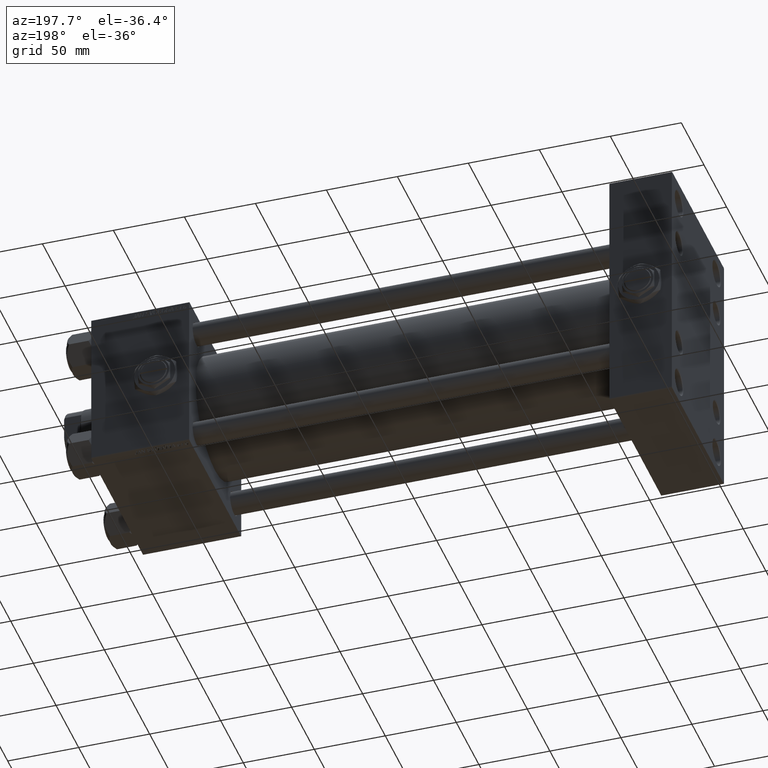
[diagram: clean part render]
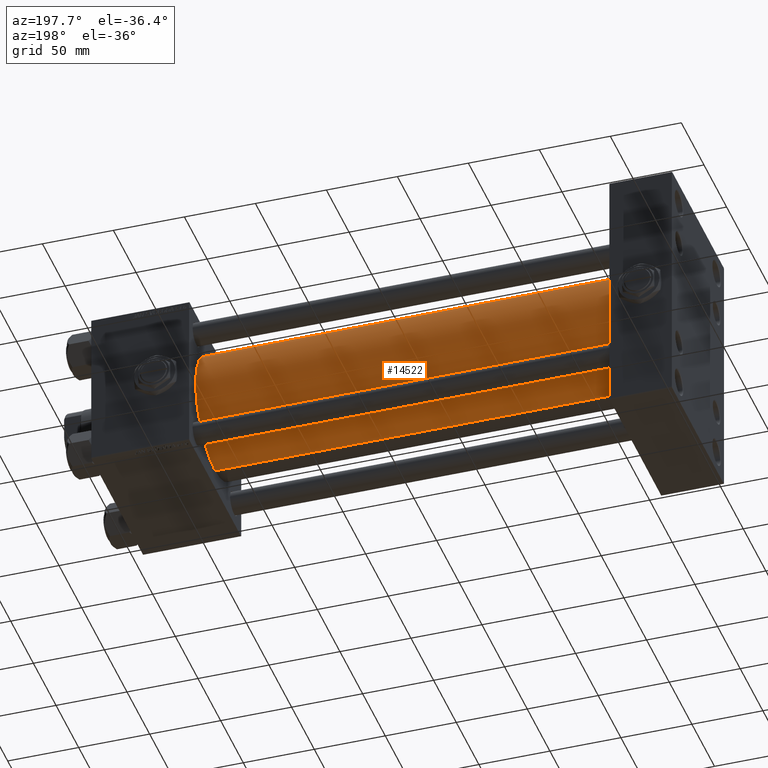
[diagram: same view with one face highlighted and labeled with its STEP entity id]
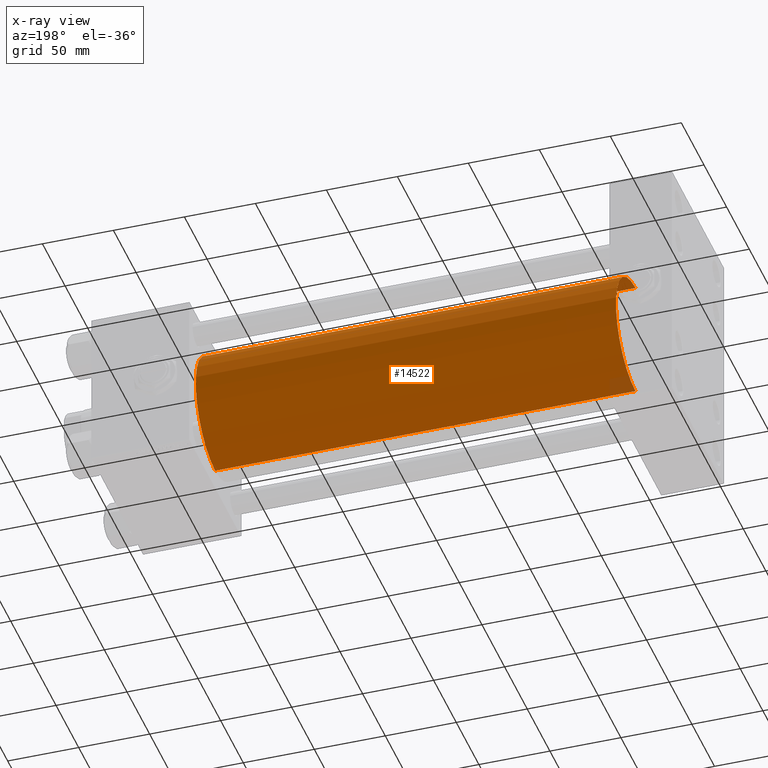
[diagram: x-ray of the same camera — body ghosted, the highlighted face saturated]
A machine part, auxiliary view. The second image highlights one B-rep face of the part: STEP entity #14522.
The next image is the same camera in x-ray: the body ghosted, the highlighted face saturated — about 1% of this face is hidden behind the body in this view.
In plain terms, the highlighted cylindrical surface (partial cylindrical patch) has radius 43 mm, axis along (-1, -0, -0).
Its self-contained STEP definition (entity closure, byte-faithful):
#846 = CARTESIAN_POINT ( 'NONE',  ( 339.9999999999999432, -2.602085213965210642E-15, 43.00000000000000000 ) ) ;
#2229 = CARTESIAN_POINT ( 'NONE',  ( 43.99999999999998579, 2.663896022368408223E-15, -43.00000000000000000 ) ) ;
#2815 = CARTESIAN_POINT ( 'NONE',  ( 339.9999999999999432, 2.663896022368408223E-15, -43.00000000000000000 ) ) ;
#4423 = ORIENTED_EDGE ( 'NONE', *, *, #21651, .F. ) ;
#5083 = EDGE_CURVE ( 'NONE', #35382, #34785, #47081, .T. ) ;
#9305 = VERTEX_POINT ( 'NONE', #18646 ) ;
#11368 = DIRECTION ( 'NONE',  ( 0.000000000000000000, 0.000000000000000000, 1.000000000000000000 ) ) ;
#13750 = DIRECTION ( 'NONE',  ( 0.000000000000000000, 0.000000000000000000, 1.000000000000000000 ) ) ;
#14522 = ADVANCED_FACE ( 'NONE', ( #14821 ), #47761, .T. ) ;
#14821 = FACE_OUTER_BOUND ( 'NONE', #50303, .T. ) ;
#17016 = DIRECTION ( 'NONE',  ( -1.000000000000000000, -0.000000000000000000, -0.000000000000000000 ) ) ;
#18256 = CARTESIAN_POINT ( 'NONE',  ( 43.99999999999998579, -2.602085213965210642E-15, 0.000000000000000000 ) ) ;
#18646 = CARTESIAN_POINT ( 'NONE',  ( 339.9999999999999432, -2.602085213965210642E-15, 43.00000000000000000 ) ) ;
#18892 = EDGE_CURVE ( 'NONE', #26439, #9305, #40680, .T. ) ;
#19997 = DIRECTION ( 'NONE',  ( 0.000000000000000000, 0.000000000000000000, -1.000000000000000000 ) ) ;
#21651 = EDGE_CURVE ( 'NONE', #9305, #34785, #33461, .T. ) ;
#23451 = DIRECTION ( 'NONE',  ( 1.000000000000000000, 0.000000000000000000, 0.000000000000000000 ) ) ;
#26174 = VECTOR ( 'NONE', #35641, 1000.000000000000000 ) ;
#26439 = VERTEX_POINT ( 'NONE', #2815 ) ;
#27751 = AXIS2_PLACEMENT_3D ( 'NONE', #40060, #40330, #11368 ) ;
#31380 = CARTESIAN_POINT ( 'NONE',  ( 339.9999999999999432, 2.663896022368408223E-15, -43.00000000000000000 ) ) ;
#31639 = LINE ( 'NONE', #31380, #26174 ) ;
#32023 = ORIENTED_EDGE ( 'NONE', *, *, #5083, .T. ) ;
#33461 = LINE ( 'NONE', #846, #39936 ) ;
#33491 = AXIS2_PLACEMENT_3D ( 'NONE', #18256, #34194, #13750 ) ;
#33584 = ORIENTED_EDGE ( 'NONE', *, *, #44443, .T. ) ;
#34194 = DIRECTION ( 'NONE',  ( 1.000000000000000000, -0.000000000000000000, 0.000000000000000000 ) ) ;
#34785 = VERTEX_POINT ( 'NONE', #36625 ) ;
#35382 = VERTEX_POINT ( 'NONE', #2229 ) ;
#35641 = DIRECTION ( 'NONE',  ( -1.000000000000000000, -0.000000000000000000, -0.000000000000000000 ) ) ;
#36625 = CARTESIAN_POINT ( 'NONE',  ( 43.99999999999998579, -2.602085213965210642E-15, 43.00000000000000000 ) ) ;
#38123 = AXIS2_PLACEMENT_3D ( 'NONE', #51606, #23451, #19997 ) ;
#39936 = VECTOR ( 'NONE', #17016, 1000.000000000000000 ) ;
#40060 = CARTESIAN_POINT ( 'NONE',  ( 339.9999999999999432, -2.602085213965210642E-15, 0.000000000000000000 ) ) ;
#40330 = DIRECTION ( 'NONE',  ( -1.000000000000000000, -0.000000000000000000, -0.000000000000000000 ) ) ;
#40680 = CIRCLE ( 'NONE', #38123, 43.00000000000000000 ) ;
#40763 = ORIENTED_EDGE ( 'NONE', *, *, #18892, .F. ) ;
#44443 = EDGE_CURVE ( 'NONE', #26439, #35382, #31639, .T. ) ;
#47081 = CIRCLE ( 'NONE', #33491, 43.00000000000000000 ) ;
#47761 = CYLINDRICAL_SURFACE ( 'NONE', #27751, 43.00000000000000000 ) ;
#50303 = EDGE_LOOP ( 'NONE', ( #40763, #33584, #32023, #4423 ) ) ;
#51606 = CARTESIAN_POINT ( 'NONE',  ( 339.9999999999999432, -2.602085213965210642E-15, 0.000000000000000000 ) ) ;